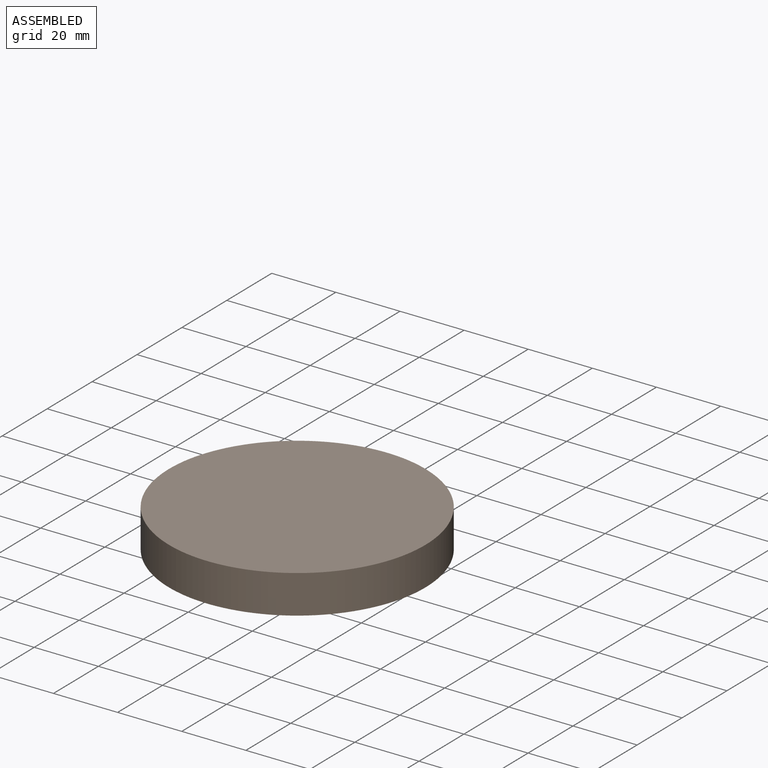
[diagram: assembled view]
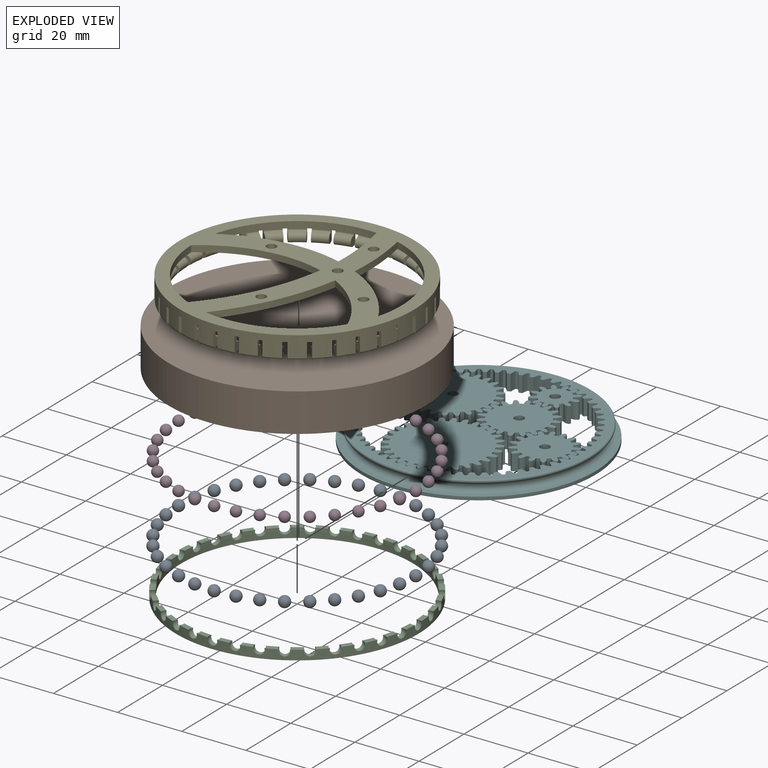
[diagram: exploded view]
GUIDED TOUR — FREECAD ASSEMBLY "wdt2"

This assembly has 6 components, labeled P0..P5 below (a component is one placed body or linked part; the same part can appear more than once), held together by 0 modeled joints plus 15 derived contact edges. A joint is a constraint between two components; its type names the relative motion it leaves free:
  CONTACT — a derived adjacency edge — the two components touch in the source model (clearance under 2% of the assembly's diagonal); it is measured from the geometry, not a modeled constraint.
Axis/direction vectors are unit vectors and 'through' points are millimeter coordinates, both in the assembly's world frame.

MATES
  1. CONTACT "contact_0_1": P0 <-> P1, contact direction (0.000, 0.000, 1.000) through (-6.62, 37.52, 1.29) mm (derived from contact, not a modeled constraint)
  2. CONTACT "contact_0_2": P0 <-> P2, contact direction (0.000, 0.000, -1.000) through (-23.71, -28.25, 0.82) mm (derived from contact, not a modeled constraint)
  3. CONTACT "contact_0_3": P0 <-> P3, contact direction (0.000, 0.000, 1.000) through (33.61, 18.95, 2.33) mm (derived from contact, not a modeled constraint)
  4. CONTACT "contact_0_4": P0 <-> P4, contact direction (0.000, 0.000, 1.000) through (-18.67, 31.05, 1.14) mm (derived from contact, not a modeled constraint)
  5. CONTACT "contact_0_5": P0 <-> P5, contact direction (0.000, 1.000, 0.000) through (-36.52, -0.56, 0.98) mm (derived from contact, not a modeled constraint)
  6. CONTACT "contact_1_2": P1 <-> P2, contact direction (0.000, 0.000, -1.000) through (-37.71, 3.77, 0.00) mm (derived from contact, not a modeled constraint)
  7. CONTACT "contact_1_3": P1 <-> P3, contact direction (0.000, 0.000, -1.000) through (-6.61, 37.49, 1.33) mm (derived from contact, not a modeled constraint)
  8. CONTACT "contact_1_4": P1 <-> P4, contact direction (0.000, 0.000, 1.000) through (-34.97, 12.84, 6.00) mm (derived from contact, not a modeled constraint)
  9. CONTACT "contact_1_5": P1 <-> P5, contact direction (0.000, 0.000, 1.000) through (1.08, -37.23, 1.13) mm (derived from contact, not a modeled constraint)
  10. CONTACT "contact_2_3": P2 <-> P3, contact direction (0.000, 0.000, 1.000) through (-18.57, 31.95, 0.87) mm (derived from contact, not a modeled constraint)
  11. CONTACT "contact_2_4": P2 <-> P4, contact direction (0.000, 0.000, 1.000) through (-5.66, -35.75, 1.15) mm (derived from contact, not a modeled constraint)
  12. CONTACT "contact_2_5": P2 <-> P5, contact direction (0.000, 1.000, 0.000) through (-12.94, -34.07, 1.00) mm (derived from contact, not a modeled constraint)
  13. CONTACT "contact_3_4": P3 <-> P4, contact direction (0.000, 0.000, 1.000) through (13.05, -33.95, 1.25) mm (derived from contact, not a modeled constraint)
  14. CONTACT "contact_3_5": P3 <-> P5, contact direction (0.000, 1.000, 0.000) through (34.31, -12.40, 1.00) mm (derived from contact, not a modeled constraint)
  15. CONTACT "contact_4_5": P4 <-> P5, contact direction (0.000, 1.000, 0.000) through (-22.09, 25.22, 2.75) mm (derived from contact, not a modeled constraint)

ASSEMBLY ORDER
  1. P0 — the base component [order heuristic]
  2. P1 [order heuristic]
  3. P2 [order heuristic]
  4. P3 [order heuristic]
  5. P4 [order heuristic]
  6. P5 [order heuristic]
Order-tag legend:
  [order heuristic] — this assembly is geometrically interlocked (no collision-free removal order exists), so components are listed in mate-graph order; insertion feasibility is not verified.

Of the 6 components, 6 carry a construction recipe — the FreeCAD feature program (sketches with constraints, then the solid features that consume them) that regenerates the part from scratch, quoted from this document or from the linked companion document it references; the rest are supplied as boundary geometry only. The tour below walks the components in assembly order: each is shown spotlighted twice — in the assembled view, then in the exploded view, where a leader line traces a displaced component back to its assembled socket (components that stay in place when exploded have no leader line; saturated green if recipe-attached, orange if geometry-only; every other component desaturated gray) — followed by its recipe or geometry summary and the mates that hold it.
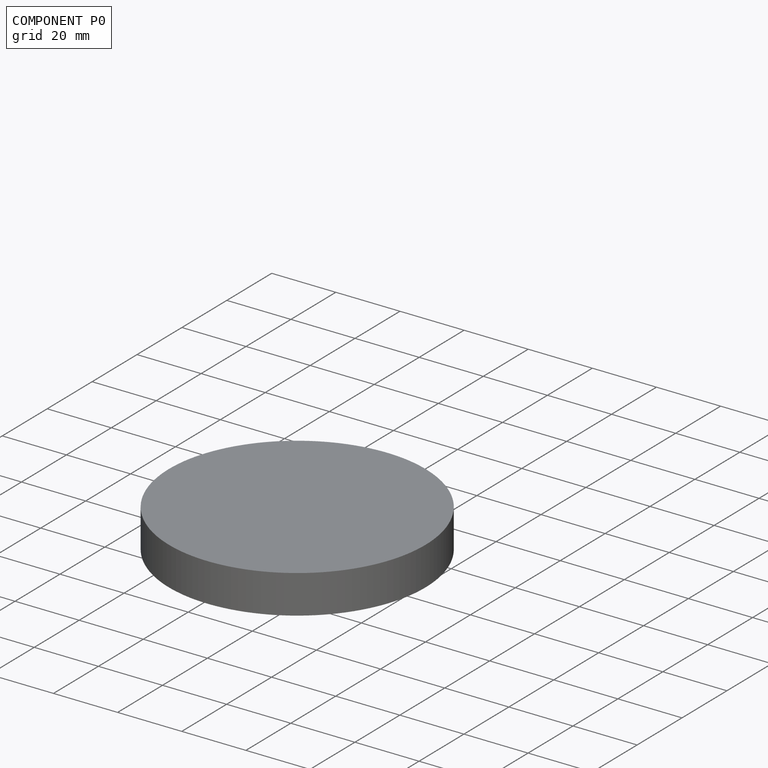
[diagram: component P0 — assembled]
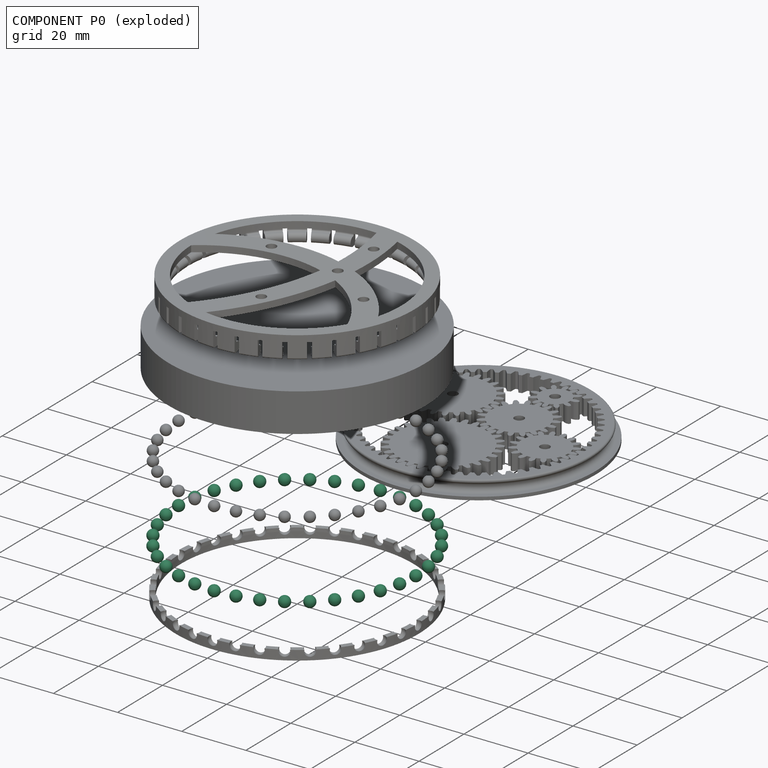
[diagram: component P0 — exploded]
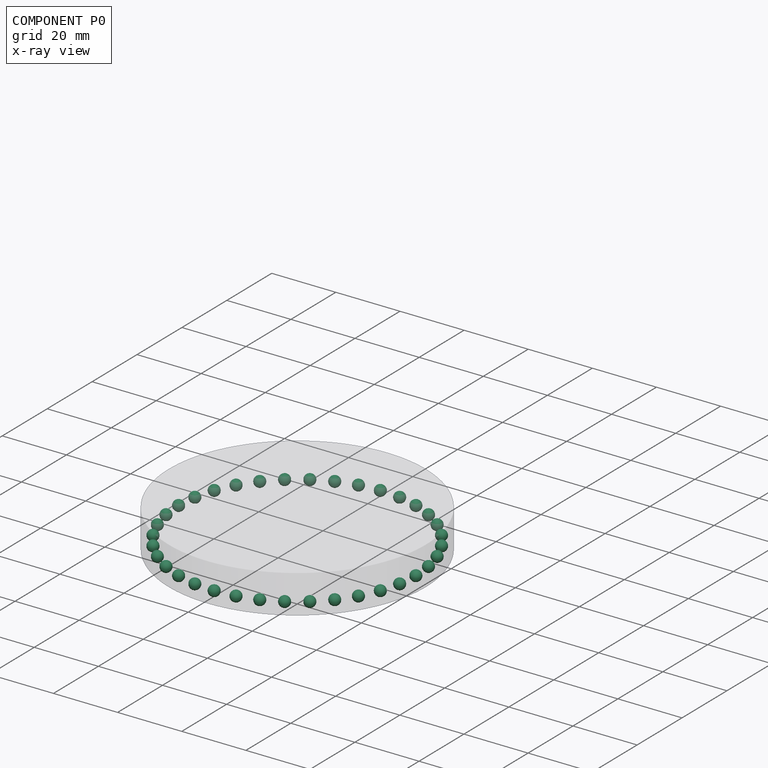
[diagram: component P0 — x-ray view]
COMPONENT P0 — recipe-attached ("Body001", modeled in this document).
Held by: resting contact with P1 (derived edge); resting contact with P2 (derived edge); resting contact with P3 (derived edge); resting contact with P4 (derived edge); resting contact with P5 (derived edge).
Construction recipe (the document's own serialized feature program — sketch geometry with constraints, then the solid features built on it; lengths are millimeters unless a unit is written):

FEATURE [Sketcher::SketchObject] Sketch002
  ArcFitTolerance = 1e-06
  AttachmentOffset = pos=(37,0,0) rot=(0,0,1;0rad)
  AttachmentSupport = -> [XZ_Plane002]
  FullyConstrained = true
  MakeInternals = false
  MapMode = 5
  Placement = pos=(37,0,0) rot=(1,0,0;1.5708rad)
  sketch-geometry (2):
    g0: ArcOfCircle CenterX=0 CenterY=2.5 CenterZ=0 NormalX=0 NormalY=0 NormalZ=1 AngleXU=0 Radius=1.6875 StartAngle=4.71239 EndAngle=7.85398
    g1: LineSegment StartX=0 StartY=4.1875 StartZ=0 EndX=0 EndY=0.8125 EndZ=0
  constraints (7):
    c: Coincident(g1,g0)
    c: Coincident(g1,g0)
    c: Vertical(g1)
    c: PointOnObject(g0,g1)
    c: Distance(g0,g-1) = 2.5
    c: PointOnObject(g0,g-2)
    c: Radius(g0) = 1.6875
FEATURE [PartDesign::Revolution] Revolution001
  Angle = 360
  Angle2 = 60
  Axis = (0,2e-16,1)
  Base = (37,0,0)
  Placement = pos=(0,0,0) rot=(1,0,0;1.5708rad)
  Profile = -> Sketch002
  ReferenceAxis = -> Sketch002 [V_Axis]
  Reversed = true
  Suppressed = false
  Type = 0
FEATURE [PartDesign::PolarPattern] PolarPattern
  Angle = 360
  Axis = -> Z_Axis002
  BaseFeature = -> Revolution001
  Mode = 0
  Occurrences = 36
  Offset = 120
  Placement = pos=(0,0,0) rot=(1,0,0;1.5708rad)
  Suppressed = false
  TransformMode = 1
FEATURE [PartDesign::Body] Body001
  AllowCompound = true
  Group = -> [Sketch002,Revolution001,PolarPattern]
  Origin = -> Origin002
  Tip = -> PolarPattern
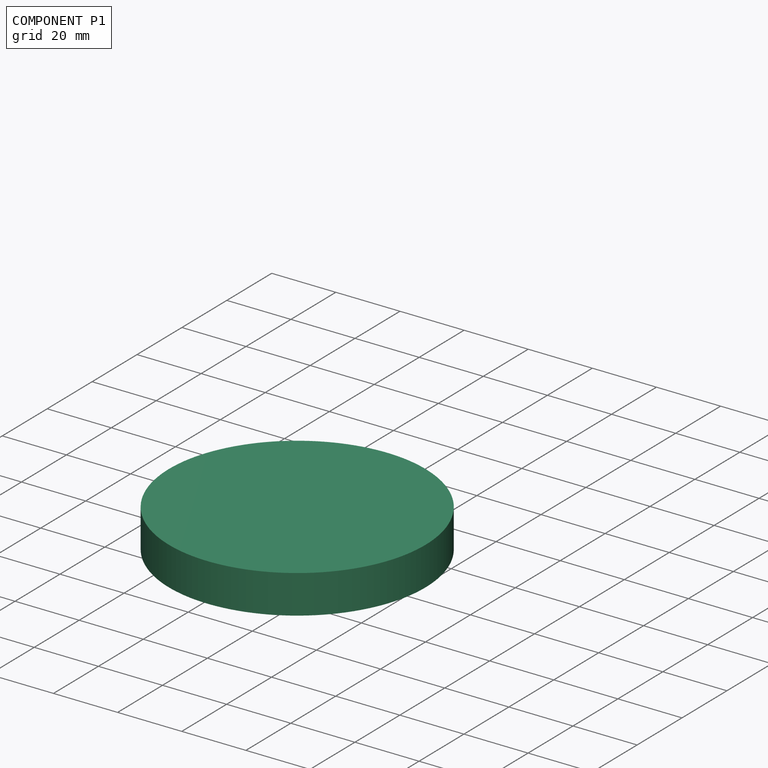
[diagram: component P1 — assembled]
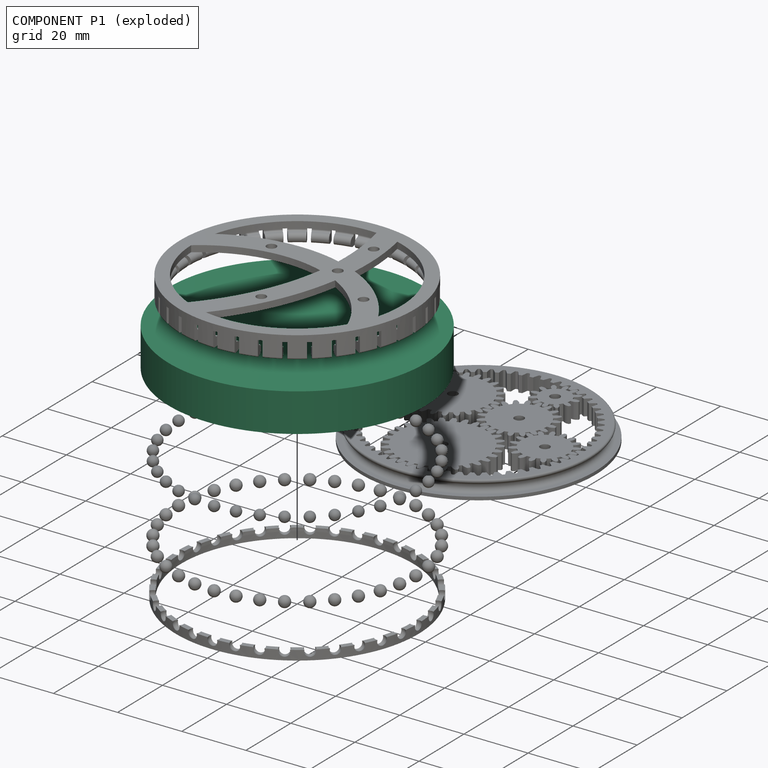
[diagram: component P1 — exploded]
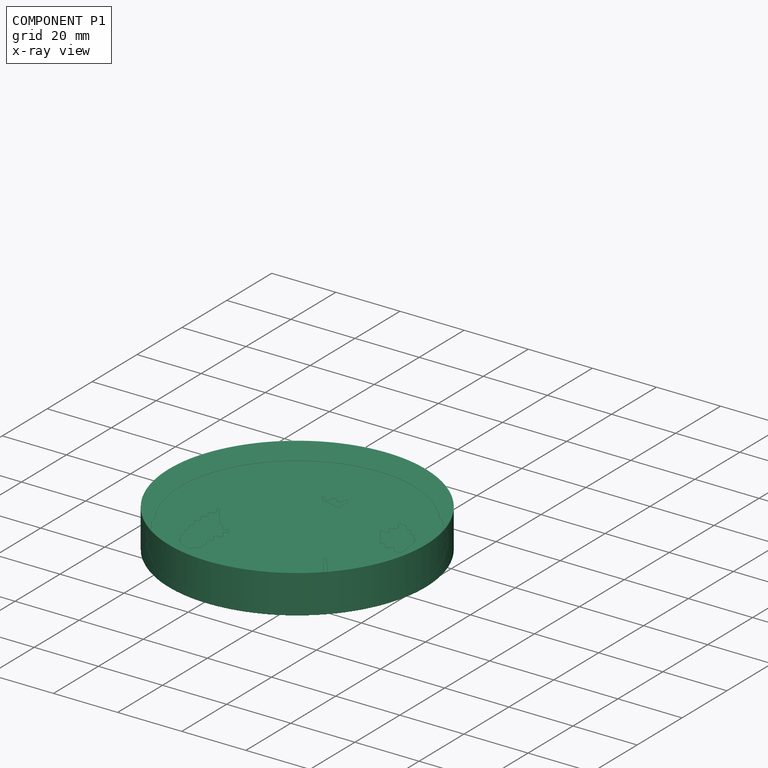
[diagram: component P1 — x-ray view]
COMPONENT P1 — recipe-attached ("Body002", modeled in this document).
Held by: resting contact with P0 (derived edge); resting contact with P2 (derived edge); resting contact with P3 (derived edge); resting contact with P4 (derived edge); resting contact with P5 (derived edge).
Construction recipe (the document's own serialized feature program — sketch geometry with constraints, then the solid features built on it; lengths are millimeters unless a unit is written):

FEATURE [Sketcher::SketchObject] Sketch003
  ArcFitTolerance = 1e-06
  AttachmentSupport = -> [XZ_Plane003]
  FullyConstrained = true
  MakeInternals = false
  MapMode = 5
  Placement = pos=(0,0,0) rot=(1,0,0;1.5708rad)
  sketch-geometry (9):
    g0: LineSegment StartX=0 StartY=12 StartZ=0 EndX=0 EndY=6 EndZ=0
    g1: LineSegment StartX=40 StartY=0 StartZ=0 EndX=40 EndY=12 EndZ=0
    g2: LineSegment StartX=40 StartY=12 StartZ=0 EndX=0 EndY=12 EndZ=0
    g3: LineSegment [constr] StartX=38 StartY=6 StartZ=0 EndX=38 EndY=0 EndZ=0
    g4: LineSegment StartX=38 StartY=0 StartZ=0 EndX=40 EndY=0 EndZ=0
    g5: LineSegment StartX=0 StartY=6 StartZ=0 EndX=38 EndY=6 EndZ=0
    g6: ArcOfCircle CenterX=37 CenterY=2.5 CenterZ=0 NormalX=0 NormalY=0 NormalZ=1 AngleXU=0 Radius=1.5875 StartAngle=5.39384 EndAngle=7.17253
    g7: LineSegment StartX=38 StartY=3.73295 StartZ=0 EndX=38 EndY=6 EndZ=0
    g8: LineSegment StartX=38 StartY=1.26705 StartZ=0 EndX=38 EndY=0 EndZ=0
  constraints (27):
    c: Coincident(g1,g2)
    c: Coincident(g2,g0)
    c: Vertical(g0)
    c: Vertical(g1)
    c: Horizontal(g2)
    c: PointOnObject(g0,g-2)
    c: Coincident(g3,g4)
    c: Horizontal(g4)
    c: Vertical(g3)
    c: PointOnObject(g3,g-1)
    c: Coincident(g5,g0)
    c: Coincident(g5,g3)
    c: Horizontal(g5)
    c: Coincident(g1,g4)
    c: DistanceX(g-1,g3) = 38
    c: Distance(g3,g3) = 6
    c: DistanceY(g1,g1) = 12
    c: Distance(g4,g4) = 2
    c: PointOnObject(g6,g3)
    c: PointOnObject(g6,g3)
    c: DistanceY(g-1,g6) = 2.5
    c: Radius(g6) = 1.5875
    c: Coincident(g7,g6)
    c: Coincident(g7,g3)
    c: Coincident(g8,g6)
    c: Coincident(g8,g3)
    c: DistanceX(g-1,g6) = 37
FEATURE [PartDesign::Revolution] Revolution002
  Angle = 360
  Angle2 = 60
  Axis = (0,2e-16,1)
  Base = (0,0,0)
  Placement = pos=(0,0,0) rot=(1,0,0;1.5708rad)
  Profile = -> Sketch003
  ReferenceAxis = -> Sketch003 [V_Axis]
  Reversed = true
  Suppressed = false
  Type = 0
FEATURE [PartDesign::Body] Body002
  AllowCompound = true
  Group = -> [Sketch003,Revolution002]
  Origin = -> Origin003
  Tip = -> Revolution002
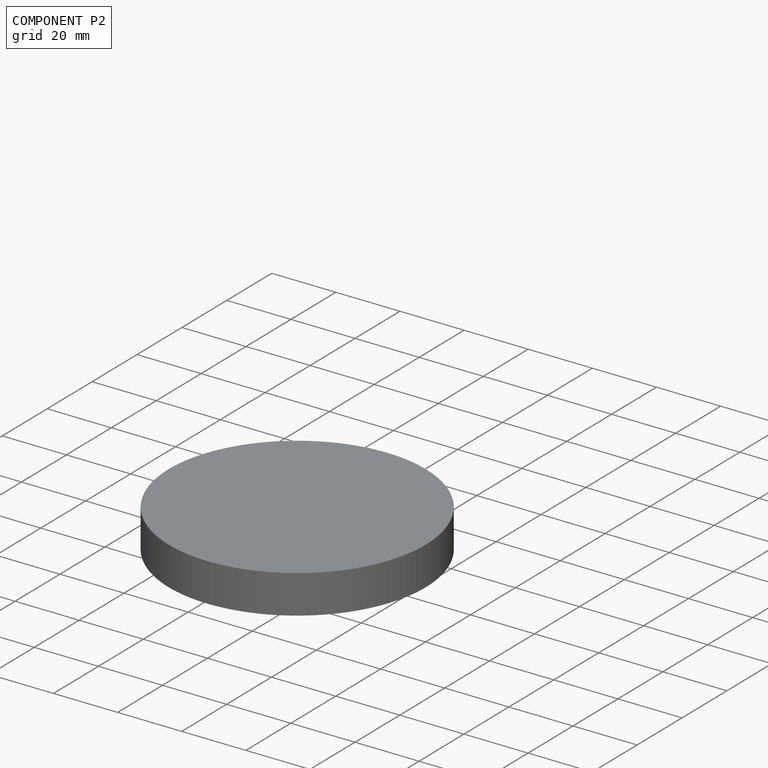
[diagram: component P2 — assembled]
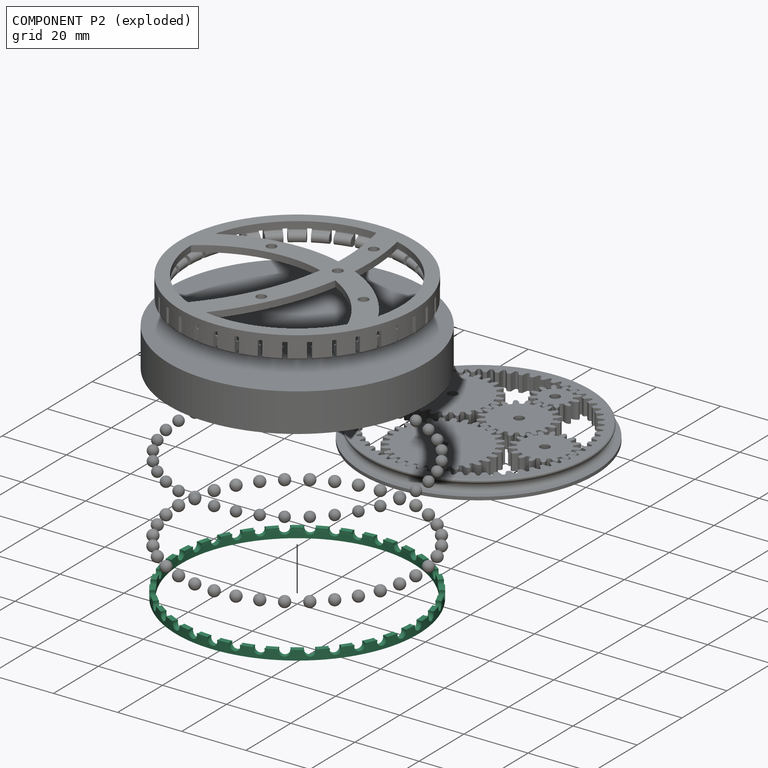
[diagram: component P2 — exploded]
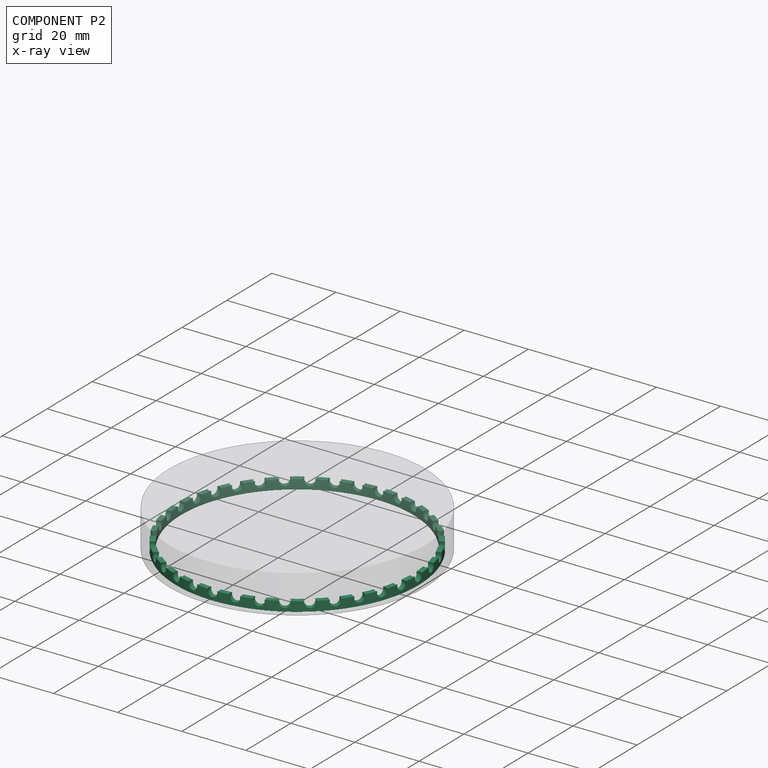
[diagram: component P2 — x-ray view]
COMPONENT P2 — recipe-attached ("Body003", modeled in this document).
Held by: resting contact with P0 (derived edge); resting contact with P1 (derived edge); resting contact with P3 (derived edge); resting contact with P4 (derived edge); resting contact with P5 (derived edge).
Construction recipe (the document's own serialized feature program — sketch geometry with constraints, then the solid features built on it; lengths are millimeters unless a unit is written):

FEATURE [Sketcher::SketchObject] Sketch004
  ArcFitTolerance = 1e-06
  AttachmentSupport = -> [XZ_Plane004]
  FullyConstrained = true
  MakeInternals = false
  MapMode = 5
  Placement = pos=(0,0,0) rot=(1,0,0;1.5708rad)
  sketch-geometry (4):
    g0: LineSegment StartX=36.2 StartY=3 StartZ=0 EndX=36.2 EndY=0 EndZ=0
    g1: LineSegment StartX=36.2 StartY=0 StartZ=0 EndX=37.8 EndY=0 EndZ=0
    g2: LineSegment StartX=37.8 StartY=0 StartZ=0 EndX=37.8 EndY=3 EndZ=0
    g3: LineSegment StartX=37.8 StartY=3 StartZ=0 EndX=36.2 EndY=3 EndZ=0
  constraints (12):
    c: Coincident(g0,g1)
    c: Coincident(g1,g2)
    c: Coincident(g2,g3)
    c: Coincident(g3,g0)
    c: Vertical(g0)
    c: Vertical(g2)
    c: Horizontal(g1)
    c: Horizontal(g3)
    c: PointOnObject(g1,g-1)
    c: DistanceX(g-1,g0) = 36.2
    c: DistanceX(g-1,g1) = 37.8
    c: DistanceY(g2,g2) = 3
FEATURE [PartDesign::Revolution] Revolution003
  Angle = 360
  Angle2 = 60
  Axis = (0,2e-16,1)
  Base = (0,0,0)
  Placement = pos=(0,0,0) rot=(1,0,0;1.5708rad)
  Profile = -> Sketch004
  ReferenceAxis = -> Sketch004 [V_Axis]
  Reversed = true
  Suppressed = false
  Type = 0
FEATURE [PartDesign::Boolean] Boolean
  BaseFeature = -> Revolution003
  Group = -> [Body001]
  Suppressed = false
  Type = 1
  UsePlacement = true
FEATURE [PartDesign::Body] Body003
  AllowCompound = true
  Group = -> [Sketch004,Revolution003,Boolean]
  Origin = -> Origin004
  Tip = -> Boolean
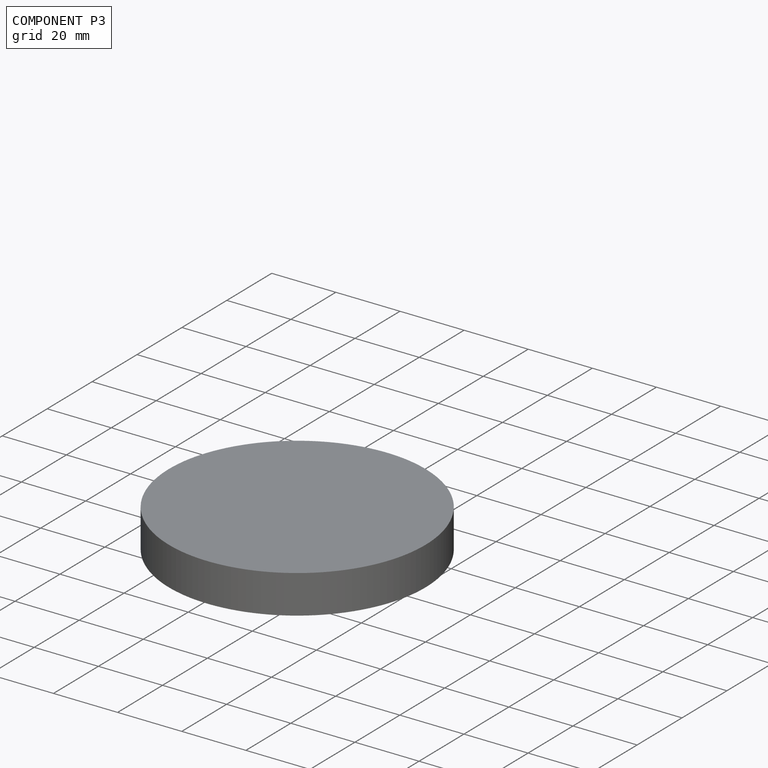
[diagram: component P3 — assembled]
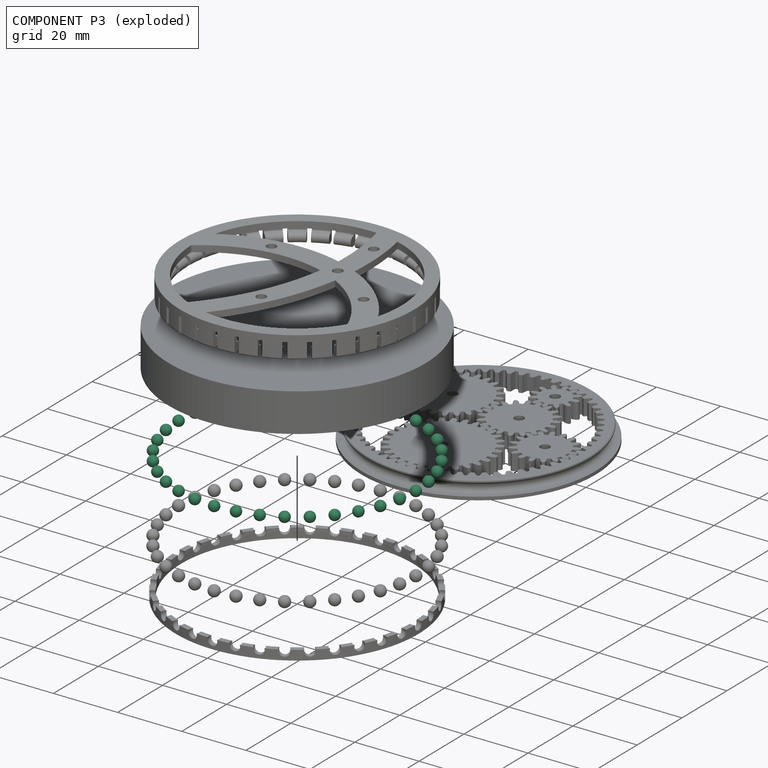
[diagram: component P3 — exploded]
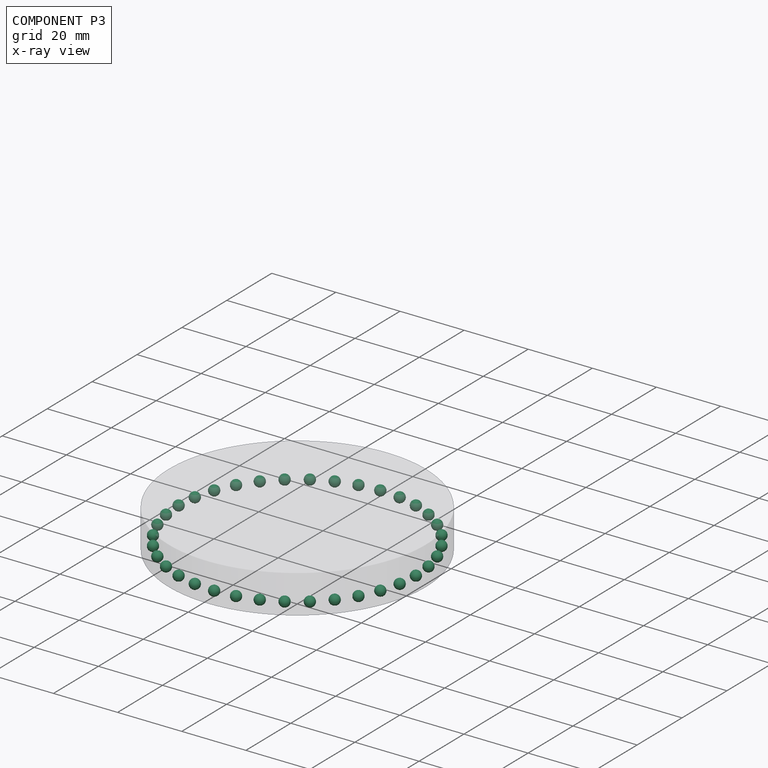
[diagram: component P3 — x-ray view]
COMPONENT P3 — recipe-attached ("Body004", modeled in this document).
Held by: resting contact with P0 (derived edge); resting contact with P1 (derived edge); resting contact with P2 (derived edge); resting contact with P4 (derived edge); resting contact with P5 (derived edge).
Construction recipe (the document's own serialized feature program — sketch geometry with constraints, then the solid features built on it; lengths are millimeters unless a unit is written):

FEATURE [Sketcher::SketchObject] Sketch005
  ArcFitTolerance = 1e-06
  AttachmentOffset = pos=(37,0,0) rot=(0,0,1;0rad)
  AttachmentSupport = -> [XZ_Plane005]
  FullyConstrained = true
  MakeInternals = false
  MapMode = 5
  Placement = pos=(37,0,0) rot=(1,0,0;1.5708rad)
  sketch-geometry (2):
    g0: ArcOfCircle CenterX=0 CenterY=2.5 CenterZ=0 NormalX=0 NormalY=0 NormalZ=1 AngleXU=0 Radius=1.5875 StartAngle=4.71239 EndAngle=7.85398
    g1: LineSegment StartX=5e-16 StartY=4.0875 StartZ=0 EndX=5e-16 EndY=0.9125 EndZ=0
  constraints (7):
    c: Coincident(g1,g0)
    c: Coincident(g1,g0)
    c: Vertical(g1)
    c: PointOnObject(g0,g1)
    c: Distance(g0,g-1) = 2.5
    c: PointOnObject(g0,g-2)
    c: Radius(g0) = 1.5875
FEATURE [PartDesign::Revolution] Revolution004
  Angle = 360
  Angle2 = 60
  Axis = (0,2e-16,1)
  Base = (37,0,0)
  Placement = pos=(0,0,0) rot=(1,0,0;1.5708rad)
  Profile = -> Sketch005
  ReferenceAxis = -> Sketch005 [V_Axis]
  Reversed = true
  Suppressed = false
  Type = 0
FEATURE [PartDesign::PolarPattern] PolarPattern001
  Angle = 360
  Axis = -> Z_Axis005
  BaseFeature = -> Revolution004
  Mode = 0
  Occurrences = 36
  Offset = 120
  Placement = pos=(0,0,0) rot=(1,0,0;1.5708rad)
  Suppressed = false
  TransformMode = 1
FEATURE [PartDesign::Body] Body004
  AllowCompound = true
  Group = -> [Sketch005,Revolution004,PolarPattern001]
  Origin = -> Origin005
  Tip = -> PolarPattern001
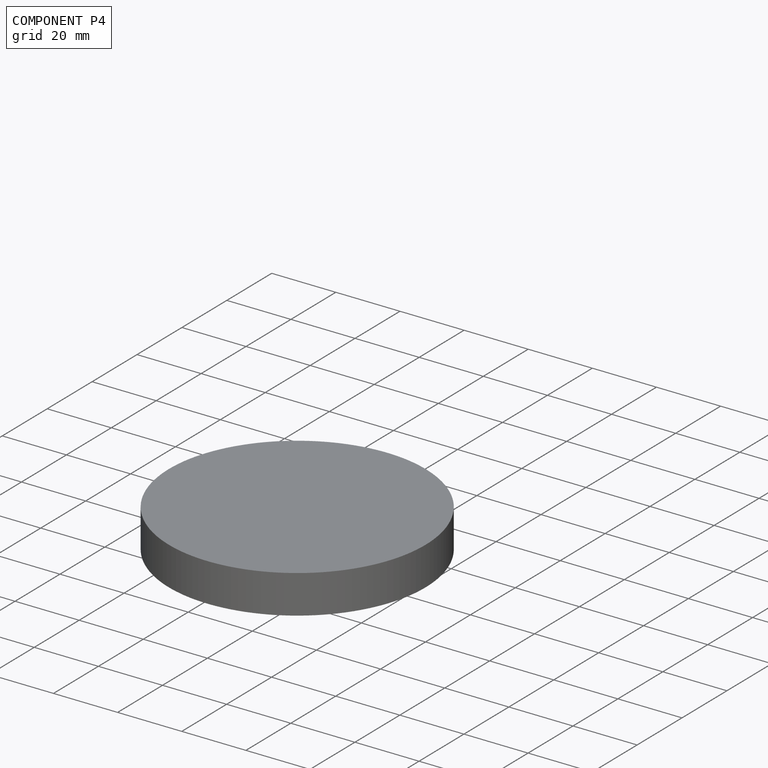
[diagram: component P4 — assembled]
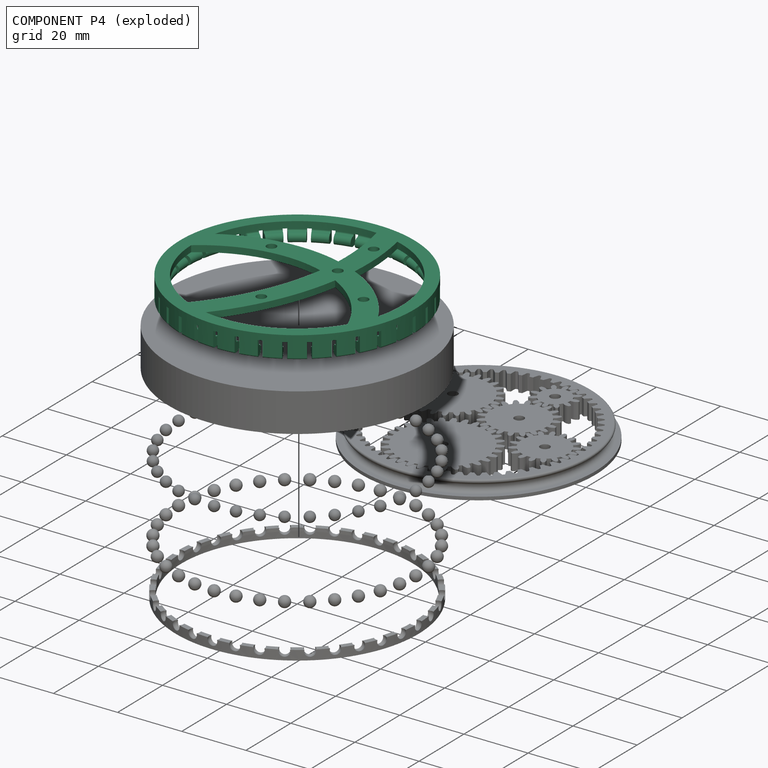
[diagram: component P4 — exploded]
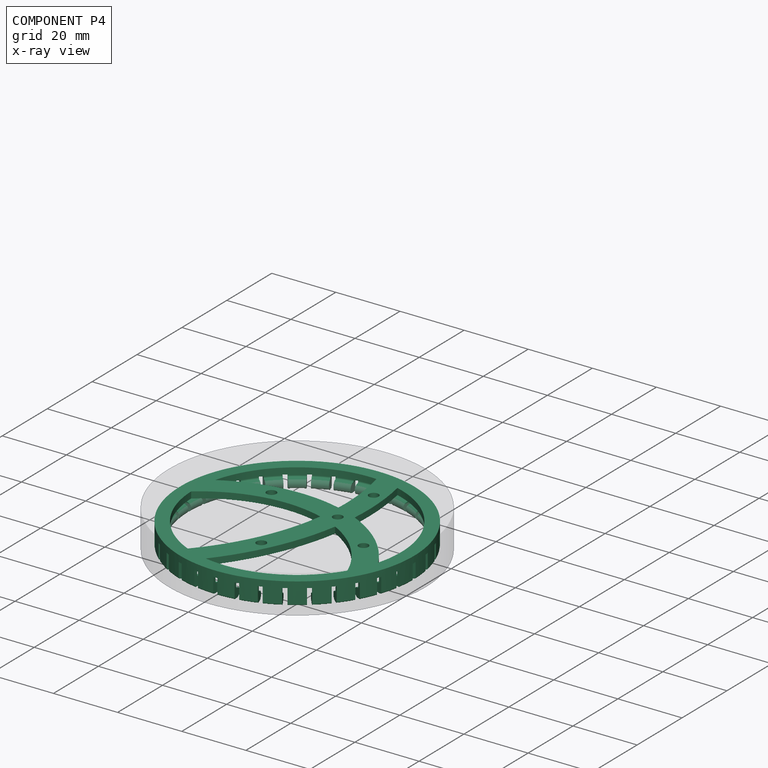
[diagram: component P4 — x-ray view]
COMPONENT P4 — recipe-attached ("Body005", modeled in this document).
Held by: resting contact with P0 (derived edge); resting contact with P1 (derived edge); resting contact with P2 (derived edge); resting contact with P3 (derived edge); resting contact with P5 (derived edge).
Construction recipe (the document's own serialized feature program — sketch geometry with constraints, then the solid features built on it; lengths are millimeters unless a unit is written):

FEATURE [Sketcher::SketchObject] Sketch006
  ArcFitTolerance = 1e-06
  AttachmentSupport = -> [XZ_Plane006]
  FullyConstrained = true
  MakeInternals = false
  MapMode = 5
  Placement = pos=(0,0,0) rot=(1,0,0;1.5708rad)
  sketch-geometry (10):
    g0: LineSegment StartX=36.5 StartY=1.6 StartZ=0 EndX=36.5 EndY=8 EndZ=0
    g1: LineSegment StartX=36.5 StartY=8 StartZ=0 EndX=32.5 EndY=8 EndZ=0
    g2: LineSegment StartX=32.5 StartY=8 StartZ=0 EndX=32.5 EndY=6 EndZ=0
    g3: ArcOfCircle CenterX=34.9 CenterY=2.5 CenterZ=0 NormalX=0 NormalY=0 NormalZ=1 AngleXU=0 Radius=1.4 StartAngle=1.51814 EndAngle=4.71239
    g4: LineSegment StartX=34.9 StartY=1.1 StartZ=0 EndX=36 EndY=1.1 EndZ=0
    g5: ArcOfCircle CenterX=36 CenterY=1.6 CenterZ=0 NormalX=0 NormalY=0 NormalZ=1 AngleXU=0 Radius=0.5 StartAngle=4.71239 EndAngle=6.28319
    g6: ArcOfCircle CenterX=35 CenterY=4.39737 CenterZ=0 NormalX=0 NormalY=0 NormalZ=1 AngleXU=0 Radius=0.5 StartAngle=4.65973 EndAngle=6.28319
    g7: LineSegment StartX=35.5 StartY=4.39737 StartZ=0 EndX=35.5 EndY=5.5 EndZ=0
    g8: ArcOfCircle CenterX=35 CenterY=5.5 CenterZ=0 NormalX=0 NormalY=0 NormalZ=1 AngleXU=0 Radius=0.5 StartAngle=2e-16 EndAngle=1.5708
    g9: LineSegment StartX=32.5 StartY=6 StartZ=0 EndX=35 EndY=6 EndZ=0
  constraints (29):
    c: Vertical(g0)
    c: Coincident(g0,g1)
    c: Horizontal(g1)
    c: Coincident(g1,g2)
    c: Vertical(g2)
    c: DistanceY(g-1,g3) = 2.5
    c: Vertical(g3,g3)
    c: Radius(g3) = 1.4
    c: Coincident(g4,g3)
    c: Horizontal(g4)
    c: Tangent(g5,g4) = -1.5708
    c: Tangent(g5,g0) = -1.5708
    c: Radius(g5) = 0.5
    c: DistanceX(g-1,g0) = 36.5
    c: DistanceX(g-1,g3) = 34.9
    c: DistanceY(g-1,g2) = 6
    c: Tangent(g6,g3) = 1.5708
    c: Radius(g6) = 0.5
    c: Distance(g6,g0) = 1
    c: Vertical(g7)
    c: Tangent(g7,g6) = -1.5708
    c: Tangent(g8,g7) = -1.5708
    c: Coincident(g9,g2)
    c: Horizontal(g9)
    c: Tangent(g9,g8) = 1.5708
    c: Radius(g8) = 0.5
    c: Distance(g2,g2) = 2
    c: DistanceX(g1,g1) = 4
    c: DistanceX(g-1,g1) = 32.5
FEATURE [PartDesign::Revolution] Revolution005
  Angle = 360
  Angle2 = 60
  Axis = (0,2e-16,1)
  Base = (0,0,0)
  Placement = pos=(0,0,0) rot=(1,0,0;1.5708rad)
  Profile = -> Sketch006
  ReferenceAxis = -> Sketch006 [V_Axis]
  Reversed = true
  Suppressed = false
  Type = 0
FEATURE [Sketcher::SketchObject] Sketch007
  ArcFitTolerance = 1e-06
  AttachmentSupport = -> [XZ_Plane006]
  ExternalGeometry = -> [Sketch006]
  FullyConstrained = true
  MakeInternals = false
  MapMode = 5
  Placement = pos=(0,0,0) rot=(1,0,0;1.5708rad)
  sketch-geometry (4):
    g0: LineSegment StartX=32.5 StartY=6 StartZ=0 EndX=32.5 EndY=0 EndZ=0
    g1: LineSegment StartX=32.5 StartY=0 StartZ=0 EndX=36.5 EndY=0 EndZ=0
    g2: LineSegment StartX=36.5 StartY=0 StartZ=0 EndX=36.5 EndY=6 EndZ=0
    g3: LineSegment StartX=36.5 StartY=6 StartZ=0 EndX=32.5 EndY=6 EndZ=0
  constraints (11):
    c: Coincident(g0,g1)
    c: Coincident(g1,g2)
    c: Coincident(g2,g3)
    c: Coincident(g3,g0)
    c: Vertical(g0)
    c: Vertical(g2)
    c: Horizontal(g1)
    c: Horizontal(g3)
    c: PointOnObject(g1,g-1)
    c: Coincident(g0,g-3)
    c: Vertical(g2,g-4)
FEATURE [PartDesign::Groove] Groove
  Angle = 2
  Angle2 = 60
  Axis = (0,2e-16,1)
  Base = (0,0,0)
  BaseFeature = -> Revolution005
  Midplane = true
  Placement = pos=(0,0,0) rot=(1,0,0;1.5708rad)
  Profile = -> Sketch007
  ReferenceAxis = -> Sketch007 [V_Axis]
  Suppressed = false
  Type = 0
FEATURE [PartDesign::PolarPattern] PolarPattern002
  Angle = 360
  Axis = -> Z_Axis006
  BaseFeature = -> Groove
  Mode = 0
  Occurrences = 36
  Offset = 120
  Originals = -> [Groove]
  Placement = pos=(0,0,0) rot=(1,0,0;1.5708rad)
  Suppressed = false
  TransformMode = 0
FEATURE [PartDesign::SubShapeBinder] Binder
  BindCopyOnChange = 0
  BindMode = 0
  ClaimChildren = false
  Context = -> Body005 [Binder.]
  Fuse = false
  MakeFace = false
  OffsetFill = false
  OffsetIntersection = false
  OffsetJoinType = 0
  OffsetOpenResult = false
  PartialLoad = false
  Relative = true
  Support = -> [Part[Sketch.]]
  _Version = 2
FEATURE [Sketcher::SketchObject] Sketch008
  ArcFitTolerance = 1e-06
  AttachmentOffset = pos=(0,0,6) rot=(0,0,1;0rad)
  AttachmentSupport = -> [XY_Plane006]
  ExternalGeometry = -> [Binder]
  FullyConstrained = true
  MakeInternals = false
  MapMode = 5
  Placement = pos=(0,0,6) rot=(0,0,1;0rad)
  sketch-geometry (28):
    g0: Circle CenterX=-15.307 CenterY=10.3898 CenterZ=0 NormalX=0 NormalY=0 NormalZ=1 AngleXU=0 Radius=1.5
    g1: Circle CenterX=7.06377 CenterY=23.9813 CenterZ=0 NormalX=0 NormalY=0 NormalZ=1 AngleXU=0 Radius=1.5
    g2: Circle CenterX=7.06377 CenterY=7.98131 CenterZ=0 NormalX=0 NormalY=0 NormalZ=1 AngleXU=0 Radius=1.5
    g3: Circle CenterX=22.3707 CenterY=-2.40845 CenterZ=0 NormalX=0 NormalY=0 NormalZ=1 AngleXU=0 Radius=1.5
    g4: Circle CenterX=0 CenterY=-16 CenterZ=0 NormalX=0 NormalY=0 NormalZ=1 AngleXU=0 Radius=1.5
    g5: Circle [constr] CenterX=0 CenterY=0 CenterZ=0 NormalX=0 NormalY=0 NormalZ=1 AngleXU=0 Radius=32.5
    g6: ArcOfCircle [constr] CenterX=-8.4918 CenterY=-31.4069 CenterZ=0 NormalX=0 NormalY=0 NormalZ=1 AngleXU=0 Radius=42.3486 StartAngle=0.445679 EndAngle=2.16778
    g7: ArcOfCircle [constr] CenterX=-64.3359 CenterY=15.9813 CenterZ=0 NormalX=0 NormalY=0 NormalZ=1 AngleXU=0 Radius=71.8464 StartAngle=5.57145 EndAngle=6.50797
    g8: ArcOfCircle [constr] CenterX=-8.4918 CenterY=-31.4069 CenterZ=0 NormalX=0 NormalY=0 NormalZ=1 AngleXU=0 Radius=45.8486 StartAngle=0.445679 EndAngle=2.16778
    g9: ArcOfCircle [constr] CenterX=-32.2981 CenterY=3.61689 CenterZ=0 NormalX=0 NormalY=0 NormalZ=1 AngleXU=0 Radius=3.5 StartAngle=2.16778 EndAngle=5.30937
    g10: ArcOfCircle [constr] CenterX=29.7201 CenterY=-13.1516 CenterZ=0 NormalX=0 NormalY=0 NormalZ=1 AngleXU=0 Radius=3.5 StartAngle=3.58727 EndAngle=6.72886
    g11: ArcOfCircle [constr] CenterX=-8.4918 CenterY=-31.4069 CenterZ=0 NormalX=0 NormalY=0 NormalZ=1 AngleXU=0 Radius=38.8486 StartAngle=0.445679 EndAngle=2.16778
    g12: ArcOfCircle [constr] CenterX=-64.3359 CenterY=15.9813 CenterZ=0 NormalX=0 NormalY=0 NormalZ=1 AngleXU=0 Radius=75.3464 StartAngle=5.57145 EndAngle=6.50797
    g13: ArcOfCircle [constr] CenterX=5.70303 CenterY=31.9957 CenterZ=0 NormalX=0 NormalY=0 NormalZ=1 AngleXU=0 Radius=3.5 StartAngle=0.224786 EndAngle=3.36638
    g14: ArcOfCircle [constr] CenterX=-9.93178 CenterY=-30.9453 CenterZ=0 NormalX=0 NormalY=0 NormalZ=1 AngleXU=0 Radius=3.5 StartAngle=2.42985 EndAngle=5.57145
    g15: ArcOfCircle [constr] CenterX=-64.3359 CenterY=15.9813 CenterZ=0 NormalX=0 NormalY=0 NormalZ=1 AngleXU=0 Radius=68.3464 StartAngle=5.57145 EndAngle=6.50797
    g16: ArcOfCircle CenterX=-8.4918 CenterY=-31.4069 CenterZ=0 NormalX=0 NormalY=0 NormalZ=1 AngleXU=0 Radius=38.8486 StartAngle=0.376844 EndAngle=1.07894
    g17: ArcOfCircle CenterX=-8.4918 CenterY=-31.4069 CenterZ=0 NormalX=0 NormalY=0 NormalZ=1 AngleXU=0 Radius=45.8486 StartAngle=0.518874 EndAngle=1.13679
    g18: ArcOfCircle CenterX=-64.3359 CenterY=15.9813 CenterZ=0 NormalX=0 NormalY=0 NormalZ=1 AngleXU=0 Radius=75.3464 StartAngle=6.20626 EndAngle=6.48503
    g19: ArcOfCircle CenterX=-64.3359 CenterY=15.9813 CenterZ=0 NormalX=0 NormalY=0 NormalZ=1 AngleXU=0 Radius=75.3464 StartAngle=5.59439 EndAngle=6.10783
    g20: ArcOfCircle CenterX=-64.3359 CenterY=15.9813 CenterZ=0 NormalX=0 NormalY=0 NormalZ=1 AngleXU=0 Radius=68.3464 StartAngle=5.55305 EndAngle=6.1312
    g21: ArcOfCircle CenterX=-64.3359 CenterY=15.9813 CenterZ=0 NormalX=0 NormalY=0 NormalZ=1 AngleXU=0 Radius=68.3464 StartAngle=6.23554 EndAngle=6.52636
    g22: ArcOfCircle CenterX=-8.4918 CenterY=-31.4069 CenterZ=0 NormalX=0 NormalY=0 NormalZ=1 AngleXU=0 Radius=45.8486 StartAngle=1.29637 EndAngle=2.09459
    g23: ArcOfCircle CenterX=-8.4918 CenterY=-31.4069 CenterZ=0 NormalX=0 NormalY=0 NormalZ=1 AngleXU=0 Radius=38.8486 StartAngle=1.26449 EndAngle=2.23662
    g24: ArcOfCircle CenterX=-8.3e-14 CenterY=2.25e-14 CenterZ=0 NormalX=0 NormalY=0 NormalZ=1 AngleXU=0 Radius=32.5 StartAngle=2.88351 EndAngle=3.16793
    g25: ArcOfCircle CenterX=6e-15 CenterY=2.1e-14 CenterZ=0 NormalX=0 NormalY=0 NormalZ=1 AngleXU=0 Radius=32.5 StartAngle=1.27477 EndAngle=1.50923
    g26: ArcOfCircle CenterX=-9.8e-15 CenterY=5.2e-15 CenterZ=0 NormalX=0 NormalY=0 NormalZ=1 AngleXU=0 Radius=32.5 StartAngle=5.72871 EndAngle=6.01313
    g27: ArcOfCircle CenterX=4.06e-14 CenterY=2.082e-13 CenterZ=0 NormalX=0 NormalY=0 NormalZ=1 AngleXU=0 Radius=32.5 StartAngle=4.287 EndAngle=4.52146
  constraints (80):
    c: Coincident(g0,g-3)
    c: Coincident(g1,g-4)
    c: Coincident(g2,g-5)
    c: Coincident(g3,g-6)
    c: Coincident(g4,g-7)
    c: Equal(g4,g0)
    c: Equal(g0,g2)
    c: Equal(g2,g1)
    c: Equal(g1,g3)
    c: Diameter(g3) = 3
    c: Coincident(g5,g-1)
    c: Diameter(g5) = 65
    c: PointOnObject(g6,g5)
    c: PointOnObject(g6,g5)
    c: PointOnObject(g3,g6)
    c: PointOnObject(g2,g6)
    c: PointOnObject(g0,g6)
    c: PointOnObject(g7,g5)
    c: PointOnObject(g4,g7)
    c: PointOnObject(g2,g7)
    c: PointOnObject(g1,g7)
    c: Coincident(g8,g11)
    c: Tangent(g11,g10) = 1.5708
    c: Tangent(g11,g9) = 1.5708
    c: Tangent(g8,g10) = -1.5708
    c: Tangent(g8,g9) = -1.5708
    c: Coincident(g12,g15)
    c: Tangent(g15,g14) = 1.5708
    c: Tangent(g15,g13) = 1.5708
    c: Tangent(g12,g14) = -1.5708
    c: Tangent(g12,g13) = -1.5708
    c: Equal(g14,g10)
    c: Radius(g10) = 3.5
    c: Coincident(g9,g6)
    c: Coincident(g10,g6)
    c: Coincident(g14,g7)
    c: Coincident(g7,g13)
    c: Horizontal(g6,g8)
    c: Vertical(g7,g12)
    c: PointOnObject(g7,g5)
    c: Tangent(g16,g11) = -1.5708
    c: PointOnObject(g16,g11)
    c: PointOnObject(g16,g12)
    c: PointOnObject(g16,g5)
    c: Tangent(g17,g8) = -1.5708
    c: PointOnObject(g17,g8)
    c: PointOnObject(g17,g5)
    c: PointOnObject(g17,g12)
    c: Coincident(g18,g17)
    c: Tangent(g18,g12) = -1.5708
    c: Coincident(g19,g16)
    c: Tangent(g19,g12) = -1.5708
    c: Tangent(g20,g15) = -1.5708
    c: PointOnObject(g20,g15)
    c: Tangent(g21,g15) = -1.5708
    c: PointOnObject(g21,g15)
    c: Tangent(g22,g8) = -1.5708
    c: PointOnObject(g22,g8)
    c: Tangent(g23,g11) = -1.5708
    c: PointOnObject(g23,g11)
    c: Coincident(g20,g23)
    c: Coincident(g21,g22)
    c: PointOnObject(g21,g5)
    c: PointOnObject(g22,g5)
    c: PointOnObject(g23,g5)
    c: PointOnObject(g20,g5)
    c: PointOnObject(g19,g5)
    c: PointOnObject(g18,g5)
    c: Coincident(g24,g23)
    c: Tangent(g24,g5) = -1.5708
    c: Horizontal(g22,g24)
    c: Coincident(g25,g21)
    c: Tangent(g25,g5) = -1.5708
    c: Vertical(g18,g25)
    c: Coincident(g26,g17)
    c: Tangent(g26,g5) = -1.5708
    c: Horizontal(g16,g26)
    c: Coincident(g27,g20)
    c: Tangent(g27,g5) = -1.5708
    c: Vertical(g19,g27)
FEATURE [PartDesign::Pad] Pad
  BaseFeature = -> PolarPattern002
  Direction = (0,0,1)
  Length = 2
  Length2 = 10
  Placement = pos=(0,0,0) rot=(1,0,0;1.5708rad)
  Profile = -> Sketch008
  ReferenceAxis = -> Sketch008 [N_Axis]
  Suppressed = false
  Type = 0
FEATURE [PartDesign::Body] Body005
  AllowCompound = true
  Group = -> [Sketch006,Revolution005,Sketch007,Groove,PolarPattern002,Sketch008,Binder,Pad]
  Origin = -> Origin006
  Tip = -> Pad
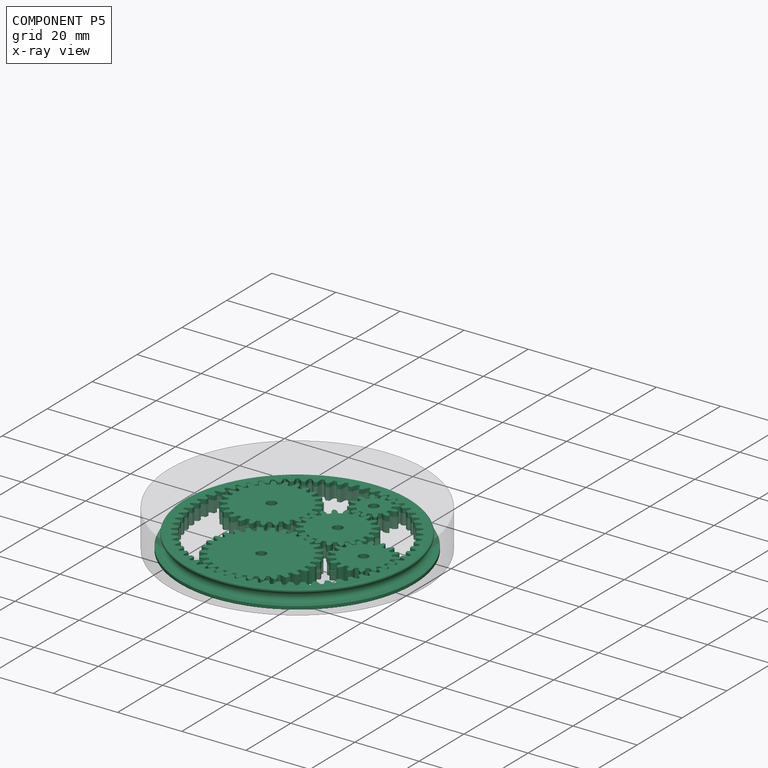
[diagram: component P5 — x-ray view]
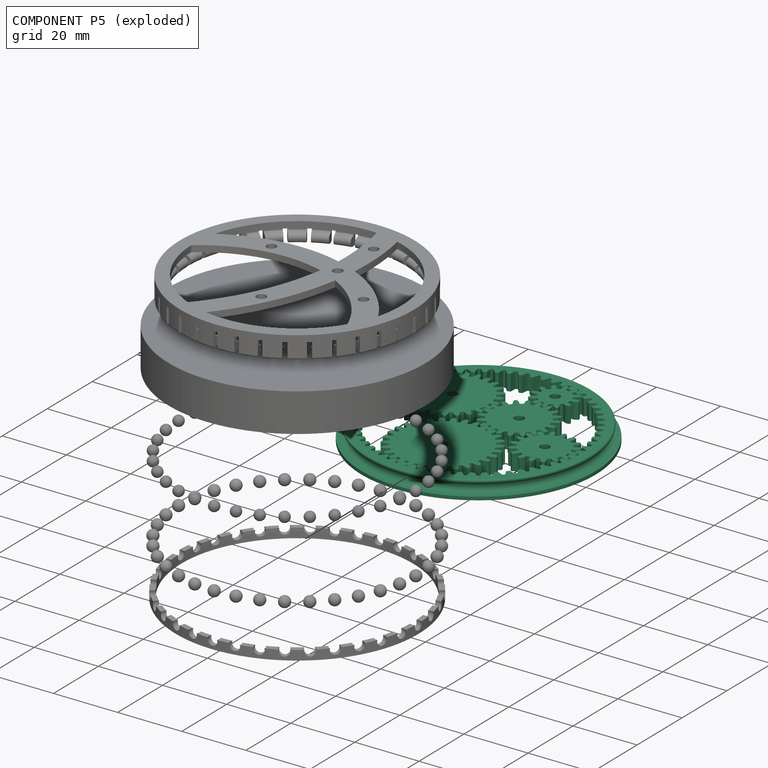
[diagram: component P5 — exploded]
COMPONENT P5 — recipe-attached ("Part", modeled in this document).
Held by: resting contact with P0 (derived edge); resting contact with P1 (derived edge); resting contact with P2 (derived edge); resting contact with P3 (derived edge); resting contact with P4 (derived edge).
Construction recipe (the document's own serialized feature program — sketch geometry with constraints, then the solid features built on it; lengths are millimeters unless a unit is written):

FEATURE [Sketcher::SketchObject] Sketch001
  ArcFitTolerance = 1e-06
  AttachmentSupport = -> [XZ_Plane001]
  FullyConstrained = true
  MakeInternals = false
  MapMode = 5
  Placement = pos=(0,0,0) rot=(1,0,0;1.5708rad)
  sketch-geometry (8):
    g0: Circle [constr] CenterX=35 CenterY=2.5 CenterZ=0 NormalX=0 NormalY=0 NormalZ=1 AngleXU=0 Radius=1.5
    g1: ArcOfCircle CenterX=35 CenterY=2.5 CenterZ=0 NormalX=0 NormalY=0 NormalZ=1 AngleXU=0 Radius=1.5 StartAngle=1.82348 EndAngle=4.71239
    g2: ArcOfCircle CenterX=34.5 CenterY=4.43649 CenterZ=0 NormalX=0 NormalY=0 NormalZ=1 AngleXU=0 Radius=0.5 StartAngle=4.96507 EndAngle=6.28319
    g3: LineSegment StartX=35 StartY=4.43649 StartZ=0 EndX=35 EndY=4.5 EndZ=0
    g4: ArcOfCircle CenterX=34.5 CenterY=4.5 CenterZ=0 NormalX=0 NormalY=0 NormalZ=1 AngleXU=0 Radius=0.5 StartAngle=0 EndAngle=1.5708
    g5: LineSegment StartX=34.5 StartY=5 StartZ=0 EndX=36.5 EndY=5 EndZ=0
    g6: LineSegment StartX=36.5 StartY=5 StartZ=0 EndX=36.5 EndY=1 EndZ=0
    g7: LineSegment StartX=36.5 StartY=1 StartZ=0 EndX=35 EndY=1 EndZ=0
  constraints (23):
    c: Diameter(g0) = 3
    c: Distance(g0,g-2) = 35
    c: DistanceY(g-1,g0) = 2.5
    c: Coincident(g1,g0)
    c: PointOnObject(g1,g0)
    c: Vertical(g3)
    c: Tangent(g2,g1) = 1.5708
    c: Tangent(g3,g2) = -1.5708
    c: Vertical(g2,g1)
    c: Radius(g2) = 0.5
    c: Tangent(g4,g3) = -1.5708
    c: Vertical(g4,g4)
    c: Radius(g4) = 0.5
    c: DistanceY(g-1,g4) = 5
    c: Coincident(g5,g4)
    c: Coincident(g6,g5)
    c: Vertical(g6)
    c: Coincident(g7,g6)
    c: Coincident(g7,g1)
    c: Horizontal(g7)
    c: Horizontal(g5)
    c: DistanceX(g5,g5) = 2
    c: Vertical(g1,g0)
FEATURE [PartDesign::Revolution] Revolution
  Angle = 360
  Angle2 = 60
  Axis = (0,2e-16,1)
  Base = (0,0,0)
  Placement = pos=(0,0,0) rot=(1,0,0;1.5708rad)
  Profile = -> Sketch001
  ReferenceAxis = -> Sketch001 [V_Axis]
  Reversed = true
  Suppressed = false
  Type = 0
FEATURE [PartDesign::Body] Body
  AllowCompound = true
  Group = -> [Sketch001,Revolution]
  Origin = -> Origin001
  Tip = -> Revolution
FEATURE [PartDesign::SubShapeBinder] Binder001
  BindCopyOnChange = 0
  BindMode = 0
  ClaimChildren = false
  Context = -> Part [Body006.Binder001.]
  Fuse = false
  MakeFace = false
  OffsetFill = false
  OffsetIntersection = false
  OffsetJoinType = 0
  OffsetOpenResult = false
  PartialLoad = false
  Relative = true
  Support = -> [Sketch]
  _Version = 2
FEATURE [Sketcher::SketchObject] Sketch009
  ArcFitTolerance = 1e-06
  AttachmentSupport = -> [XY_Plane007]
  ExternalGeometry = -> [Binder001]
  FullyConstrained = true
  MakeInternals = false
  MapMode = 5
  sketch-geometry (5):
    g0: Circle CenterX=-15.307 CenterY=10.3898 CenterZ=0 NormalX=0 NormalY=0 NormalZ=1 AngleXU=0 Radius=1.5
    g1: Circle CenterX=7.06377 CenterY=23.9813 CenterZ=0 NormalX=0 NormalY=0 NormalZ=1 AngleXU=0 Radius=1.5
    g2: Circle CenterX=7.06377 CenterY=7.98131 CenterZ=0 NormalX=0 NormalY=0 NormalZ=1 AngleXU=0 Radius=1.5
    g3: Circle CenterX=0 CenterY=-16 CenterZ=0 NormalX=0 NormalY=0 NormalZ=1 AngleXU=0 Radius=1.5
    g4: Circle CenterX=22.3707 CenterY=-2.40845 CenterZ=0 NormalX=0 NormalY=0 NormalZ=1 AngleXU=0 Radius=1.5
  constraints (10):
    c: Coincident(g0,g-3)
    c: Coincident(g1,g-4)
    c: Coincident(g2,g-5)
    c: Coincident(g3,g-7)
    c: Coincident(g4,g-6)
    c: Equal(g0,g1)
    c: Equal(g1,g2)
    c: Equal(g2,g3)
    c: Equal(g3,g4)
    c: Diameter(g4) = 3
FEATURE [PartDesign::Pad] Pad001
  Direction = (0,0,1)
  Length = 10
  Length2 = 10
  Profile = -> Sketch009
  ReferenceAxis = -> Sketch009 [N_Axis]
  Suppressed = false
  Type = 0
FEATURE [PartDesign::Body] Body006
  AllowCompound = true
  Group = -> [Sketch009,Binder001,Pad001]
  Origin = -> Origin007
  Tip = -> Pad001
PROVENANCE & LICENSES
Assembly and component geometry: a FreeCAD (.FCStd) document from a public repository crawl; components, placements and joints were extracted with FreeCAD and each solid tessellated.
Construction recipes: the document's own serialized feature recipes (and, for linked parts, the recipes of companion documents from the same project).
License: as declared in the source repository (recorded in the dataset sidecar).
Joints: native FreeCAD joints and A2plus constraints are mapped to standard mate types; edges marked 'derived from contact' connect touching components and are measured from the geometry, not modeled.
Verification: 6 of this assembly's 6 components carry a construction recipe (6 from this document itself); the rest are geometry-only. Every component's tessellation passed the extraction mesh gates (mesh-volume checksum against the B-rep where available, bounding-box inflation <= 2%).
Renders: orthographic iso camera (az 35 / el 25); the floor grid conveys scale (grid pitch printed in each image; no ruler). In the exploded view each component is displaced by its stored offset vector: the offsets alone carry the explosion direction (mate normal/axis signs are not orientation cues and do not encode it), and separation distances are assigned per mate-chain, not proportionally to assembly-order depth.
